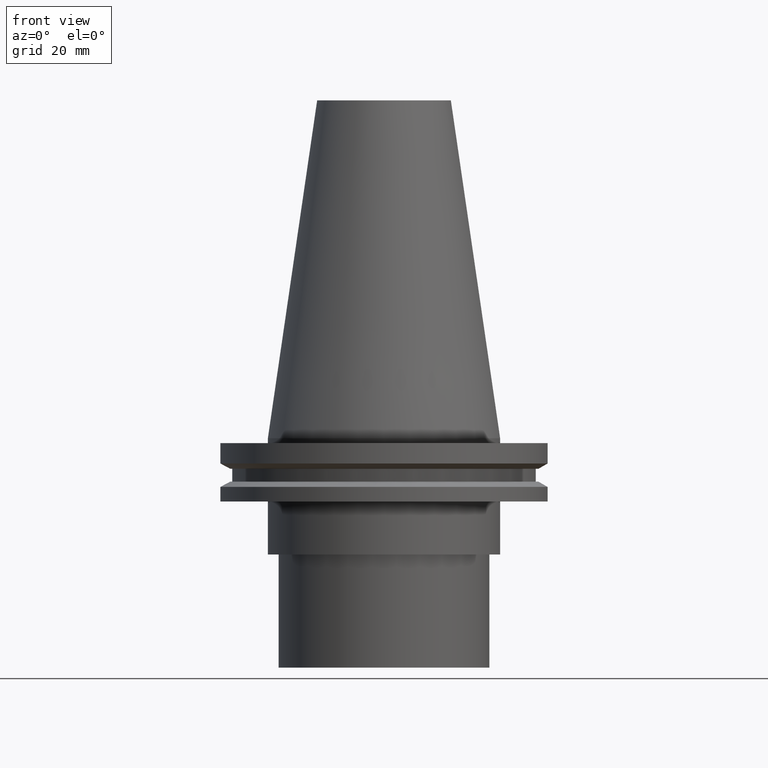
[diagram: clean part render]
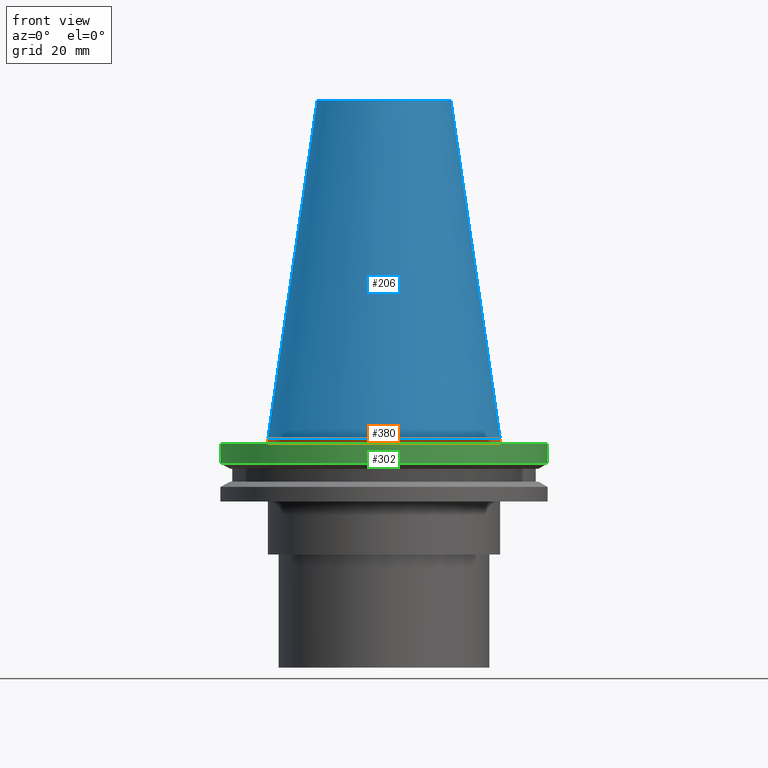
[diagram: same view with three faces highlighted in distinct colors, each labeled with its STEP entity id]
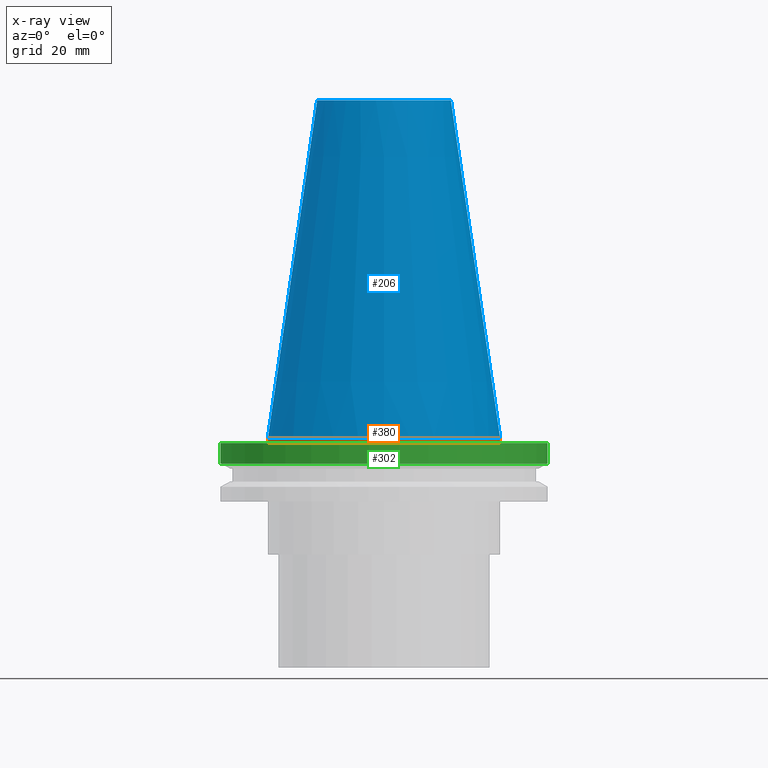
[diagram: x-ray of the same camera — body ghosted, the three highlighted faces saturated]
A machine part, front view with three faces highlighted in distinct colors.
The next image is the same camera in x-ray (body ghosted, the three faces saturated) — at least one of them is partly hidden behind the body in this view.
Their STEP definitions:

[orange] entity #380 — the highlighted cylindrical surface (bore or boss wall) has radius 34.925 mm, axis along (-0, -0, 1).
#1 = DIRECTION ( 'NONE',  ( 1.000000000000000000, 0.000000000000000000, 0.000000000000000000 ) ) ;
#14 = EDGE_LOOP ( 'NONE', ( #314 ) ) ;
#84 = DIRECTION ( 'NONE',  ( -0.000000000000000000, -0.000000000000000000, 1.000000000000000000 ) ) ;
#88 = CARTESIAN_POINT ( 'NONE',  ( 0.000000000000000000, 0.000000000000000000, 0.000000000000000000 ) ) ;
#104 = CARTESIAN_POINT ( 'NONE',  ( 34.92499999999999005, 0.000000000000000000, 0.000000000000000000 ) ) ;
#118 = AXIS2_PLACEMENT_3D ( 'NONE', #384, #328, #326 ) ;
#142 = VERTEX_POINT ( 'NONE', #231 ) ;
#151 = CIRCLE ( 'NONE', #310, 34.92499999999999005 ) ;
#179 = EDGE_CURVE ( 'NONE', #359, #359, #151, .T. ) ;
#193 = DIRECTION ( 'NONE',  ( -0.000000000000000000, -0.000000000000000000, 1.000000000000000000 ) ) ;
#231 = CARTESIAN_POINT ( 'NONE',  ( 34.92499999999999005, 0.000000000000000000, -1.499999999999987566 ) ) ;
#234 = CYLINDRICAL_SURFACE ( 'NONE', #118, 34.92499999999999005 ) ;
#254 = EDGE_LOOP ( 'NONE', ( #381 ) ) ;
#285 = EDGE_CURVE ( 'NONE', #142, #142, #325, .T. ) ;
#293 = FACE_OUTER_BOUND ( 'NONE', #14, .T. ) ;
#300 = FACE_OUTER_BOUND ( 'NONE', #254, .T. ) ;
#310 = AXIS2_PLACEMENT_3D ( 'NONE', #88, #84, #1 ) ;
#314 = ORIENTED_EDGE ( 'NONE', *, *, #179, .F. ) ;
#321 = DIRECTION ( 'NONE',  ( 1.000000000000000000, 0.000000000000000000, 0.000000000000000000 ) ) ;
#325 = CIRCLE ( 'NONE', #350, 34.92499999999999005 ) ;
#326 = DIRECTION ( 'NONE',  ( 1.000000000000000000, 0.000000000000000000, 0.000000000000000000 ) ) ;
#328 = DIRECTION ( 'NONE',  ( -0.000000000000000000, -0.000000000000000000, 1.000000000000000000 ) ) ;
#350 = AXIS2_PLACEMENT_3D ( 'NONE', #391, #193, #321 ) ;
#359 = VERTEX_POINT ( 'NONE', #104 ) ;
#380 = ADVANCED_FACE ( 'NONE', ( #293, #300 ), #234, .T. ) ;
#381 = ORIENTED_EDGE ( 'NONE', *, *, #285, .T. ) ;
#384 = CARTESIAN_POINT ( 'NONE',  ( 0.000000000000000000, 0.000000000000000000, 101.5999999999999943 ) ) ;
#391 = CARTESIAN_POINT ( 'NONE',  ( 0.000000000000000000, 0.000000000000000000, -1.499999999999987566 ) ) ;

[blue] entity #206 — the highlighted conical surface has half-angle 8.297 deg.
#1 = DIRECTION ( 'NONE',  ( 1.000000000000000000, 0.000000000000000000, 0.000000000000000000 ) ) ;
#15 = AXIS2_PLACEMENT_3D ( 'NONE', #341, #244, #335 ) ;
#21 = CARTESIAN_POINT ( 'NONE',  ( 20.10819343178871321, 0.000000000000000000, 101.5999999999999801 ) ) ;
#46 = EDGE_LOOP ( 'NONE', ( #241 ) ) ;
#54 = EDGE_CURVE ( 'NONE', #110, #110, #222, .T. ) ;
#64 = FACE_BOUND ( 'NONE', #162, .T. ) ;
#84 = DIRECTION ( 'NONE',  ( -0.000000000000000000, -0.000000000000000000, 1.000000000000000000 ) ) ;
#88 = CARTESIAN_POINT ( 'NONE',  ( 0.000000000000000000, 0.000000000000000000, 0.000000000000000000 ) ) ;
#89 = FACE_OUTER_BOUND ( 'NONE', #46, .T. ) ;
#104 = CARTESIAN_POINT ( 'NONE',  ( 34.92499999999999005, 0.000000000000000000, 0.000000000000000000 ) ) ;
#110 = VERTEX_POINT ( 'NONE', #21 ) ;
#151 = CIRCLE ( 'NONE', #310, 34.92499999999999005 ) ;
#162 = EDGE_LOOP ( 'NONE', ( #383 ) ) ;
#179 = EDGE_CURVE ( 'NONE', #359, #359, #151, .T. ) ;
#181 = AXIS2_PLACEMENT_3D ( 'NONE', #252, #375, #349 ) ;
#206 = ADVANCED_FACE ( 'NONE', ( #64, #89 ), #292, .T. ) ;
#222 = CIRCLE ( 'NONE', #181, 20.10819343178871321 ) ;
#241 = ORIENTED_EDGE ( 'NONE', *, *, #179, .T. ) ;
#244 = DIRECTION ( 'NONE',  ( 0.000000000000000000, 0.000000000000000000, -1.000000000000000000 ) ) ;
#252 = CARTESIAN_POINT ( 'NONE',  ( 0.000000000000000000, 0.000000000000000000, 101.5999999999999801 ) ) ;
#292 = CONICAL_SURFACE ( 'NONE', #15, 34.92499999999999005, 0.1448138465474119452 ) ;
#310 = AXIS2_PLACEMENT_3D ( 'NONE', #88, #84, #1 ) ;
#335 = DIRECTION ( 'NONE',  ( -1.000000000000000000, 0.000000000000000000, 0.000000000000000000 ) ) ;
#341 = CARTESIAN_POINT ( 'NONE',  ( 0.000000000000000000, 0.000000000000000000, 0.000000000000000000 ) ) ;
#349 = DIRECTION ( 'NONE',  ( 1.000000000000000000, 0.000000000000000000, 0.000000000000000000 ) ) ;
#359 = VERTEX_POINT ( 'NONE', #104 ) ;
#375 = DIRECTION ( 'NONE',  ( -0.000000000000000000, -0.000000000000000000, 1.000000000000000000 ) ) ;
#383 = ORIENTED_EDGE ( 'NONE', *, *, #54, .F. ) ;

[green] entity #302 — the highlighted cylindrical surface (bore or boss wall) has radius 49.215 mm, axis along (-0, -0, 1).
#17 = ORIENTED_EDGE ( 'NONE', *, *, #87, .T. ) ;
#20 = CIRCLE ( 'NONE', #353, 49.21499999999999631 ) ;
#36 = EDGE_LOOP ( 'NONE', ( #17 ) ) ;
#42 = CARTESIAN_POINT ( 'NONE',  ( 0.000000000000000000, 0.000000000000000000, 101.5999999999999943 ) ) ;
#55 = CIRCLE ( 'NONE', #140, 49.21500000000000341 ) ;
#75 = EDGE_LOOP ( 'NONE', ( #229 ) ) ;
#82 = VERTEX_POINT ( 'NONE', #266 ) ;
#87 = EDGE_CURVE ( 'NONE', #82, #82, #55, .T. ) ;
#94 = DIRECTION ( 'NONE',  ( 1.000000000000000000, 0.000000000000000000, 0.000000000000000000 ) ) ;
#121 = DIRECTION ( 'NONE',  ( -0.000000000000000000, -0.000000000000000000, 1.000000000000000000 ) ) ;
#127 = CARTESIAN_POINT ( 'NONE',  ( 0.000000000000000000, 0.000000000000000000, -1.499999999999987566 ) ) ;
#133 = FACE_OUTER_BOUND ( 'NONE', #75, .T. ) ;
#139 = CARTESIAN_POINT ( 'NONE',  ( 0.000000000000000000, 0.000000000000000000, -7.602389855251287187 ) ) ;
#140 = AXIS2_PLACEMENT_3D ( 'NONE', #139, #265, #298 ) ;
#189 = FACE_OUTER_BOUND ( 'NONE', #36, .T. ) ;
#194 = AXIS2_PLACEMENT_3D ( 'NONE', #42, #121, #94 ) ;
#214 = DIRECTION ( 'NONE',  ( -0.000000000000000000, -0.000000000000000000, 1.000000000000000000 ) ) ;
#225 = DIRECTION ( 'NONE',  ( 1.000000000000000000, 0.000000000000000000, 0.000000000000000000 ) ) ;
#228 = VERTEX_POINT ( 'NONE', #268 ) ;
#229 = ORIENTED_EDGE ( 'NONE', *, *, #306, .F. ) ;
#265 = DIRECTION ( 'NONE',  ( -0.000000000000000000, -0.000000000000000000, 1.000000000000000000 ) ) ;
#266 = CARTESIAN_POINT ( 'NONE',  ( 49.21500000000000341, 0.000000000000000000, -7.602389855251287187 ) ) ;
#268 = CARTESIAN_POINT ( 'NONE',  ( 49.21499999999999631, 0.000000000000000000, -1.499999999999987566 ) ) ;
#298 = DIRECTION ( 'NONE',  ( 1.000000000000000000, 0.000000000000000000, 0.000000000000000000 ) ) ;
#302 = ADVANCED_FACE ( 'NONE', ( #133, #189 ), #317, .T. ) ;
#306 = EDGE_CURVE ( 'NONE', #228, #228, #20, .T. ) ;
#317 = CYLINDRICAL_SURFACE ( 'NONE', #194, 49.21499999999999631 ) ;
#353 = AXIS2_PLACEMENT_3D ( 'NONE', #127, #214, #225 ) ;